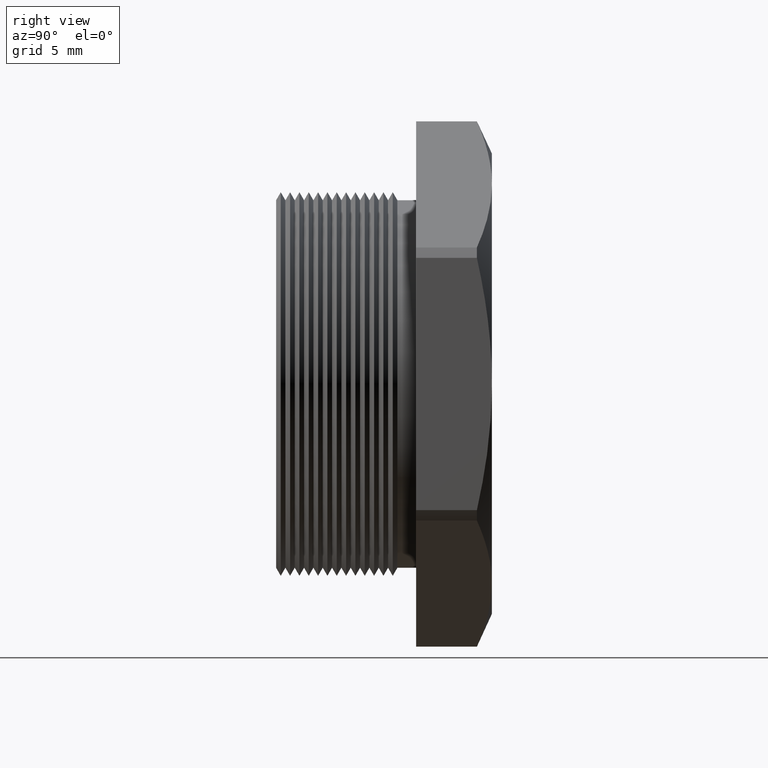
[diagram: clean part render]
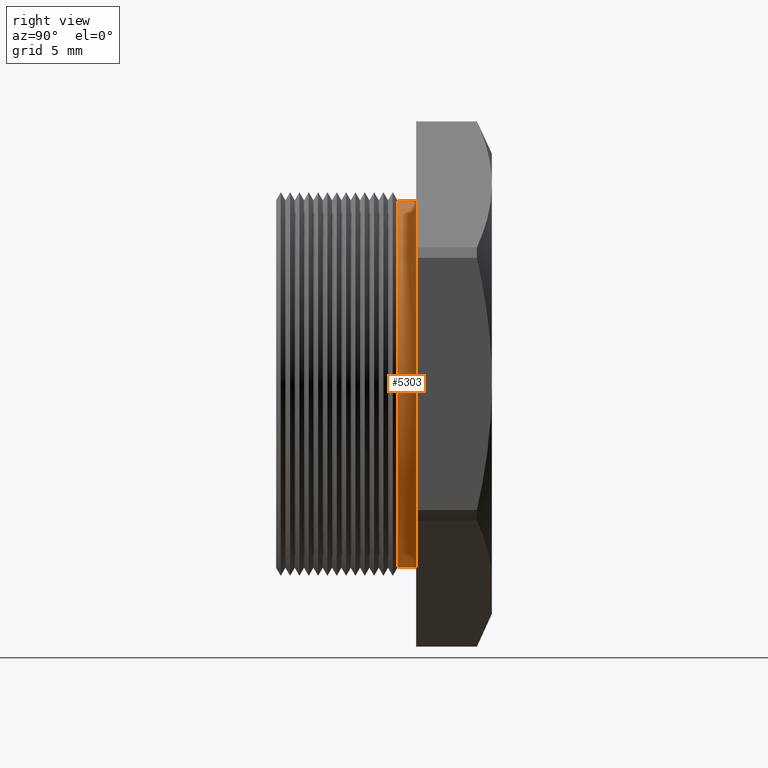
[diagram: same view with one face highlighted and labeled with its STEP entity id]
A machine part, right view. The second image highlights one B-rep face of the part: STEP entity #5303.
In plain terms, the highlighted cylindrical surface (partial cylindrical patch) has radius 8.001 mm, axis along (-0, -1, -0).
Its self-contained STEP definition (entity closure, byte-faithful):
#3280 = CARTESIAN_POINT ( 'NONE',  ( 0.0000000000000000000, 0.2455072448100089100, -0.3150000000000000000 ) ) ;
#3281 = DIRECTION ( 'NONE',  ( 0.0000000000000000000, 0.0000000000000000000, -1.000000000000000000 ) ) ;
#3282 = DIRECTION ( 'NONE',  ( 0.0000000000000000000, -1.000000000000000000, 0.0000000000000000000 ) ) ;
#3283 = CARTESIAN_POINT ( 'NONE',  ( 0.0000000000000000000, 0.2455072448100089100, 0.0000000000000000000 ) ) ;
#3284 = AXIS2_PLACEMENT_3D ( 'NONE', #3283, #3282, #3281 ) ;
#3289 = CIRCLE ( 'NONE', #3284, 0.3150000000000000000 ) ;
#3327 = CARTESIAN_POINT ( 'NONE',  ( 3.857637417314162700E-017, 0.2455072448100089100, 0.3150000000000000000 ) ) ;
#3525 = CARTESIAN_POINT ( 'NONE',  ( 0.0000000000000000000, 0.2775548905829479700, 0.0000000000000000000 ) ) ;
#3526 = DIRECTION ( 'NONE',  ( 0.0000000000000000000, 0.0000000000000000000, -1.000000000000000000 ) ) ;
#3527 = DIRECTION ( 'NONE',  ( -0.0000000000000000000, -1.000000000000000000, -0.0000000000000000000 ) ) ;
#3528 = CARTESIAN_POINT ( 'NONE',  ( 0.0000000000000000000, 0.0000000000000000000, 0.0000000000000000000 ) ) ;
#3529 = AXIS2_PLACEMENT_3D ( 'NONE', #3528, #3527, #3526 ) ;
#3530 = CYLINDRICAL_SURFACE ( 'NONE', #3529, 0.3150000000000000000 ) ;
#3531 = FACE_OUTER_BOUND ( 'NONE', #5304, .T. ) ;
#3550 = DIRECTION ( 'NONE',  ( -0.0000000000000000000, -1.000000000000000000, -0.0000000000000000000 ) ) ;
#3551 = VECTOR ( 'NONE', #3550, 39.37007874015748100 ) ;
#3552 = CARTESIAN_POINT ( 'NONE',  ( 0.0000000000000000000, 0.0000000000000000000, -0.3150000000000000000 ) ) ;
#3553 = LINE ( 'NONE', #3552, #3551 ) ;
#3576 = DIRECTION ( 'NONE',  ( -0.0000000000000000000, -1.000000000000000000, -0.0000000000000000000 ) ) ;
#3577 = VECTOR ( 'NONE', #3576, 39.37007874015748100 ) ;
#3578 = CARTESIAN_POINT ( 'NONE',  ( 3.857637417314162700E-017, 0.0000000000000000000, 0.3150000000000000000 ) ) ;
#3579 = LINE ( 'NONE', #3578, #3577 ) ;
#3580 = CARTESIAN_POINT ( 'NONE',  ( 3.857637417314162700E-017, 0.2775548905829479700, 0.3150000000000000000 ) ) ;
#3581 = CARTESIAN_POINT ( 'NONE',  ( 0.0000000000000000000, 0.2775548905829479700, -0.3150000000000000000 ) ) ;
#3582 = DIRECTION ( 'NONE',  ( 0.0000000000000000000, 0.0000000000000000000, -1.000000000000000000 ) ) ;
#3583 = DIRECTION ( 'NONE',  ( -0.0000000000000000000, -1.000000000000000000, -0.0000000000000000000 ) ) ;
#3584 = AXIS2_PLACEMENT_3D ( 'NONE', #3525, #3583, #3582 ) ;
#3585 = CIRCLE ( 'NONE', #3584, 0.3150000000000000000 ) ;
#5171 = EDGE_CURVE ( 'NONE', #5172, #5180, #3289, .T. ) ;
#5172 = VERTEX_POINT ( 'NONE', #3280 ) ;
#5180 = VERTEX_POINT ( 'NONE', #3327 ) ;
#5291 = ORIENTED_EDGE ( 'NONE', *, *, #5292, .F. ) ;
#5292 = EDGE_CURVE ( 'NONE', #5307, #5172, #3553, .T. ) ;
#5303 = ADVANCED_FACE ( 'NONE', ( #3531 ), #3530, .T. ) ;
#5304 = EDGE_LOOP ( 'NONE', ( #5305, #5309, #5311, #5291 ) ) ;
#5305 = ORIENTED_EDGE ( 'NONE', *, *, #5306, .T. ) ;
#5306 = EDGE_CURVE ( 'NONE', #5307, #5308, #3585, .T. ) ;
#5307 = VERTEX_POINT ( 'NONE', #3581 ) ;
#5308 = VERTEX_POINT ( 'NONE', #3580 ) ;
#5309 = ORIENTED_EDGE ( 'NONE', *, *, #5310, .T. ) ;
#5310 = EDGE_CURVE ( 'NONE', #5308, #5180, #3579, .T. ) ;
#5311 = ORIENTED_EDGE ( 'NONE', *, *, #5171, .F. ) ;